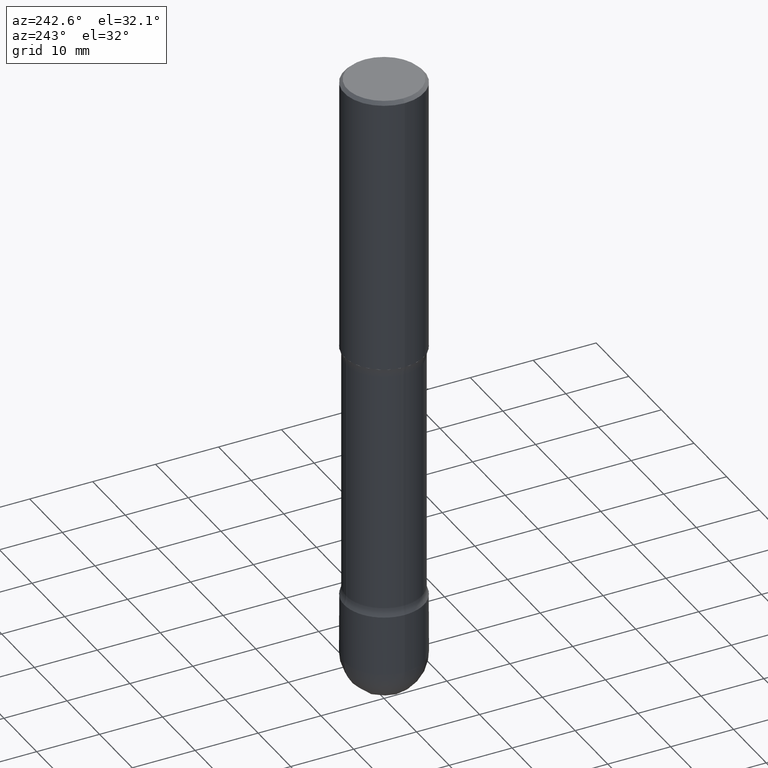
[diagram: clean part render]
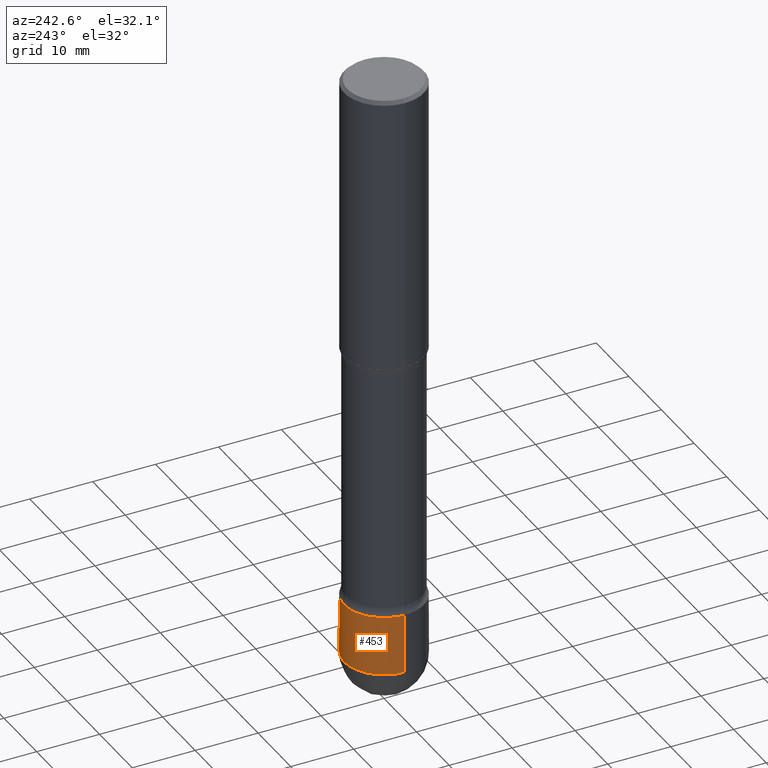
[diagram: same view with one face highlighted and labeled with its STEP entity id]
A machine part, auxiliary view. The second image highlights one B-rep face of the part: STEP entity #453.
In plain terms, the highlighted cylindrical surface (partial cylindrical patch) has radius 6.35 mm, axis along (-0, 0, 1).
Its self-contained STEP definition (entity closure, byte-faithful):
#6 = CARTESIAN_POINT ( 'NONE',  ( 1.776356839400337634E-15, 0.2499999999999863443, -3.750000000000000888 ) ) ;
#20 = CARTESIAN_POINT ( 'NONE',  ( 0.2499999999999993061, -1.418414293905026949E-14, -3.749999999999999556 ) ) ;
#39 = EDGE_LOOP ( 'NONE', ( #853, #56, #732, #184, #785 ) ) ;
#44 = VERTEX_POINT ( 'NONE', #6 ) ;
#56 = ORIENTED_EDGE ( 'NONE', *, *, #527, .T. ) ;
#58 = EDGE_CURVE ( 'NONE', #256, #723, #517, .T. ) ;
#85 = DIRECTION ( 'NONE',  ( -2.445468806185136597E-29, 3.491481338843145583E-15, 1.000000000000000000 ) ) ;
#94 = DIRECTION ( 'NONE',  ( 1.000000000000000000, -6.982962677686266711E-15, 4.876176775795935793E-29 ) ) ;
#131 = DIRECTION ( 'NONE',  ( -2.445468806185136877E-29, 3.491481338843145188E-15, 1.000000000000000000 ) ) ;
#149 = VECTOR ( 'NONE', #131, 39.37007874015748143 ) ;
#154 = EDGE_CURVE ( 'NONE', #44, #834, #433, .T. ) ;
#175 = DIRECTION ( 'NONE',  ( -2.445468806185136597E-29, 3.491481338843145583E-15, 1.000000000000000000 ) ) ;
#184 = ORIENTED_EDGE ( 'NONE', *, *, #515, .F. ) ;
#204 = EDGE_CURVE ( 'NONE', #675, #44, #387, .T. ) ;
#211 = DIRECTION ( 'NONE',  ( 1.000000000000000000, -6.982962677686267499E-15, 0.000000000000000000 ) ) ;
#218 = DIRECTION ( 'NONE',  ( 1.000000000000000000, -6.982962677686267499E-15, 0.000000000000000000 ) ) ;
#246 = CARTESIAN_POINT ( 'NONE',  ( 0.2499999999999993616, -1.745740669421562142E-15, 1.219044193948980865E-29 ) ) ;
#256 = VERTEX_POINT ( 'NONE', #300 ) ;
#262 = CARTESIAN_POINT ( 'NONE',  ( 8.253457220874836014E-29, -1.178374951859561452E-14, -3.375000000000000000 ) ) ;
#285 = AXIS2_PLACEMENT_3D ( 'NONE', #365, #175, #94 ) ;
#300 = CARTESIAN_POINT ( 'NONE',  ( 0.2499999999999993894, -1.352949018801717646E-14, -3.375000000000000000 ) ) ;
#302 = CARTESIAN_POINT ( 'NONE',  ( -0.2499999999999994171, -1.066204543022846181E-14, -3.375000000000000000 ) ) ;
#318 = CARTESIAN_POINT ( 'NONE',  ( -0.2499999999999993616, 1.776356839400245929E-15, -1.229733772563723222E-29 ) ) ;
#365 = CARTESIAN_POINT ( 'NONE',  ( 0.000000000000000000, 0.000000000000000000, 0.000000000000000000 ) ) ;
#387 = CIRCLE ( 'NONE', #512, 0.2499999999999993061 ) ;
#401 = FACE_OUTER_BOUND ( 'NONE', #39, .T. ) ;
#411 = VECTOR ( 'NONE', #861, 39.37007874015748143 ) ;
#433 = CIRCLE ( 'NONE', #662, 0.2499999999999993061 ) ;
#453 = ADVANCED_FACE ( 'NONE', ( #401 ), #536, .T. ) ;
#471 = CARTESIAN_POINT ( 'NONE',  ( 9.170508023194261117E-29, -1.309305502066179584E-14, -3.749999999999999556 ) ) ;
#512 = AXIS2_PLACEMENT_3D ( 'NONE', #471, #742, #218 ) ;
#515 = EDGE_CURVE ( 'NONE', #675, #256, #733, .T. ) ;
#517 = CIRCLE ( 'NONE', #725, 0.2499999999999993894 ) ;
#527 = EDGE_CURVE ( 'NONE', #834, #723, #651, .T. ) ;
#536 = CYLINDRICAL_SURFACE ( 'NONE', #285, 0.2499999999999993616 ) ;
#651 = LINE ( 'NONE', #318, #149 ) ;
#662 = AXIS2_PLACEMENT_3D ( 'NONE', #826, #818, #211 ) ;
#675 = VERTEX_POINT ( 'NONE', #20 ) ;
#723 = VERTEX_POINT ( 'NONE', #302 ) ;
#725 = AXIS2_PLACEMENT_3D ( 'NONE', #262, #85, #749 ) ;
#732 = ORIENTED_EDGE ( 'NONE', *, *, #58, .F. ) ;
#733 = LINE ( 'NONE', #246, #411 ) ;
#742 = DIRECTION ( 'NONE',  ( -2.445468806185136597E-29, 3.491481338843145583E-15, 1.000000000000000000 ) ) ;
#749 = DIRECTION ( 'NONE',  ( 1.000000000000000000, -6.982962677686265133E-15, 0.000000000000000000 ) ) ;
#785 = ORIENTED_EDGE ( 'NONE', *, *, #204, .T. ) ;
#818 = DIRECTION ( 'NONE',  ( -2.445468806185136597E-29, 3.491481338843145583E-15, 1.000000000000000000 ) ) ;
#826 = CARTESIAN_POINT ( 'NONE',  ( 9.170508023194261117E-29, -1.309305502066179584E-14, -3.749999999999999556 ) ) ;
#834 = VERTEX_POINT ( 'NONE', #859 ) ;
#853 = ORIENTED_EDGE ( 'NONE', *, *, #154, .T. ) ;
#859 = CARTESIAN_POINT ( 'NONE',  ( -0.2499999999999993061, -1.066204543022846339E-14, -3.749999999999999556 ) ) ;
#861 = DIRECTION ( 'NONE',  ( -2.445468806185136877E-29, 3.491481338843145188E-15, 1.000000000000000000 ) ) ;